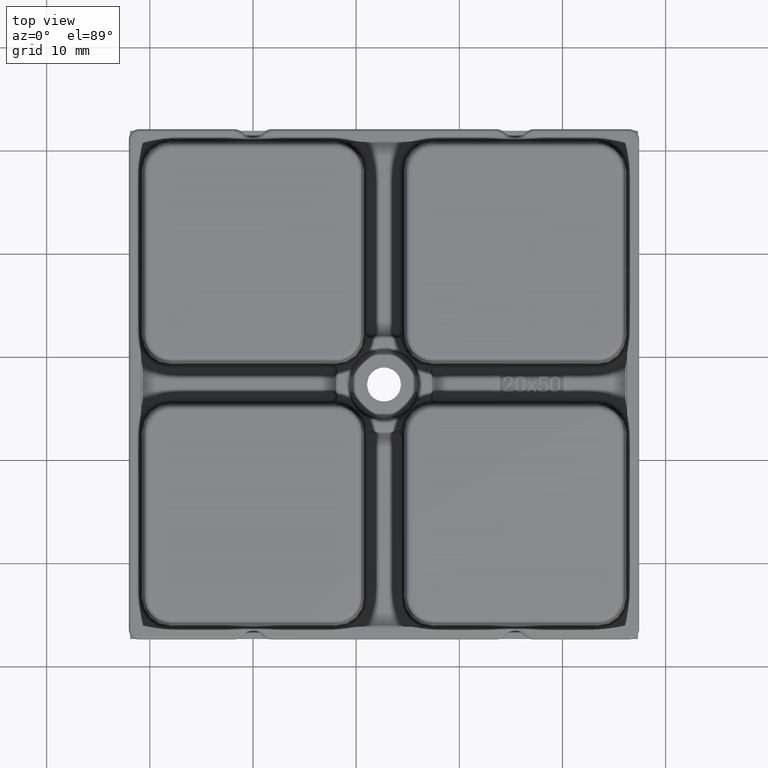
[diagram: clean part render]
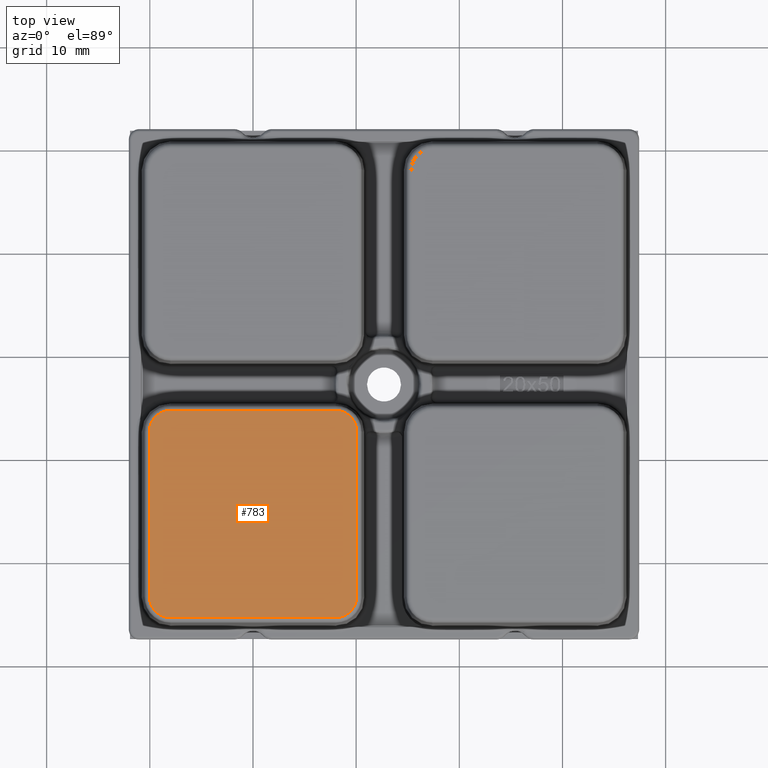
[diagram: same view with one face highlighted and labeled with its STEP entity id]
A machine part, top view. The second image highlights one B-rep face of the part: STEP entity #783.
In plain terms, the highlighted planar face has unit normal (0, 0, -1).
Its self-contained STEP definition (entity closure, byte-faithful):
#783=ADVANCED_FACE('',(#1403),#1254,.F.);
#1254=PLANE('',#7707);
#1403=FACE_OUTER_BOUND('',#1851,.T.);
#1851=EDGE_LOOP('',(#2858,#2859,#2860,#2861,#2862,#2863,#2864,#2865));
#2369=CIRCLE('',#7703,2.04647484159524);
#2370=CIRCLE('',#7704,2.04647484159524);
#2371=CIRCLE('',#7705,2.04647484159524);
#2372=CIRCLE('',#7706,2.04647484159524);
#2858=ORIENTED_EDGE('',*,*,#5754,.T.);
#2859=ORIENTED_EDGE('',*,*,#5755,.T.);
#2860=ORIENTED_EDGE('',*,*,#5756,.T.);
#2861=ORIENTED_EDGE('',*,*,#5757,.T.);
#2862=ORIENTED_EDGE('',*,*,#5758,.T.);
#2863=ORIENTED_EDGE('',*,*,#5759,.T.);
#2864=ORIENTED_EDGE('',*,*,#5760,.T.);
#2865=ORIENTED_EDGE('',*,*,#5761,.T.);
#5078=VERTEX_POINT('',#10765);
#5079=VERTEX_POINT('',#10766);
#5080=VERTEX_POINT('',#10768);
#5081=VERTEX_POINT('',#10770);
#5082=VERTEX_POINT('',#10772);
#5083=VERTEX_POINT('',#10774);
#5084=VERTEX_POINT('',#10776);
#5085=VERTEX_POINT('',#10778);
#5754=EDGE_CURVE('',#5078,#5079,#6856,.T.);
#5755=EDGE_CURVE('',#5079,#5080,#2369,.T.);
#5756=EDGE_CURVE('',#5080,#5081,#6857,.T.);
#5757=EDGE_CURVE('',#5081,#5082,#2370,.T.);
#5758=EDGE_CURVE('',#5082,#5083,#6858,.T.);
#5759=EDGE_CURVE('',#5083,#5084,#2371,.T.);
#5760=EDGE_CURVE('',#5084,#5085,#6859,.T.);
#5761=EDGE_CURVE('',#5085,#5078,#2372,.T.);
#6856=LINE('',#10764,#7270);
#6857=LINE('',#10769,#7271);
#6858=LINE('',#10773,#7272);
#6859=LINE('',#10777,#7273);
#7270=VECTOR('',#8591,1.);
#7271=VECTOR('',#8594,1.);
#7272=VECTOR('',#8597,1.);
#7273=VECTOR('',#8600,1.);
#7703=AXIS2_PLACEMENT_3D('',#10767,#8592,#8593);
#7704=AXIS2_PLACEMENT_3D('',#10771,#8595,#8596);
#7705=AXIS2_PLACEMENT_3D('',#10775,#8598,#8599);
#7706=AXIS2_PLACEMENT_3D('',#10779,#8601,#8602);
#7707=AXIS2_PLACEMENT_3D('',#10780,#8603,#8604);
#8591=DIRECTION('',(1.,0.,0.));
#8592=DIRECTION('',(0.,0.,1.));
#8593=DIRECTION('',(-1.,0.,0.));
#8594=DIRECTION('',(0.,1.,0.));
#8595=DIRECTION('',(0.,0.,1.));
#8596=DIRECTION('',(-1.,0.,0.));
#8597=DIRECTION('',(-1.,0.,0.));
#8598=DIRECTION('',(0.,0.,1.));
#8599=DIRECTION('',(-1.,0.,0.));
#8600=DIRECTION('',(0.,-1.,0.));
#8601=DIRECTION('',(0.,0.,1.));
#8602=DIRECTION('',(-1.,0.,0.));
#8603=DIRECTION('',(0.,0.,-1.));
#8604=DIRECTION('',(-1.,0.,0.));
#10764=CARTESIAN_POINT('',(7.99999999999998,-35.4464748415952,9.311));
#10765=CARTESIAN_POINT('',(-7.99999999999998,-35.4464748415952,9.311));
#10766=CARTESIAN_POINT('',(7.99999999999998,-35.4464748415952,9.311));
#10767=CARTESIAN_POINT('',(8.,-33.4,9.311));
#10768=CARTESIAN_POINT('',(10.0464748415952,-33.4,9.311));
#10769=CARTESIAN_POINT('',(10.0464748415952,-17.4,9.311));
#10770=CARTESIAN_POINT('',(10.0464748415952,-17.4,9.311));
#10771=CARTESIAN_POINT('',(8.,-17.4,9.311));
#10772=CARTESIAN_POINT('',(7.99999999999998,-15.3535251584047,9.311));
#10773=CARTESIAN_POINT('',(-7.99999999999998,-15.3535251584047,9.311));
#10774=CARTESIAN_POINT('',(-7.99999999999998,-15.3535251584047,9.311));
#10775=CARTESIAN_POINT('',(-8.,-17.4,9.311));
#10776=CARTESIAN_POINT('',(-10.0464748415952,-17.4,9.311));
#10777=CARTESIAN_POINT('',(-10.0464748415952,-33.4,9.311));
#10778=CARTESIAN_POINT('',(-10.0464748415952,-33.4,9.311));
#10779=CARTESIAN_POINT('',(-8.,-33.4,9.311));
#10780=CARTESIAN_POINT('',(0.,-36.4,9.311));